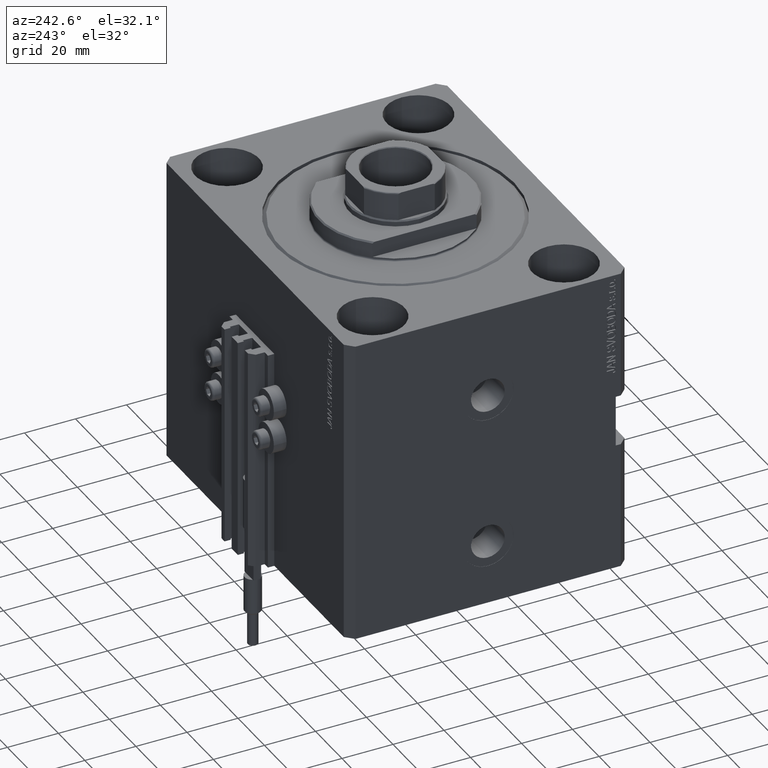
[diagram: clean part render]
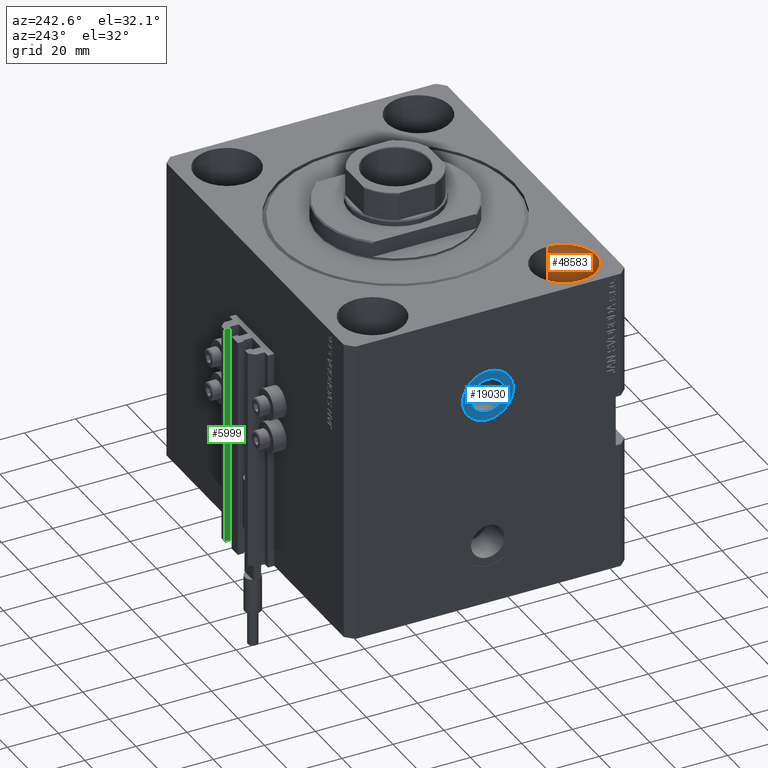
[diagram: same view with three faces highlighted in distinct colors, each labeled with its STEP entity id]
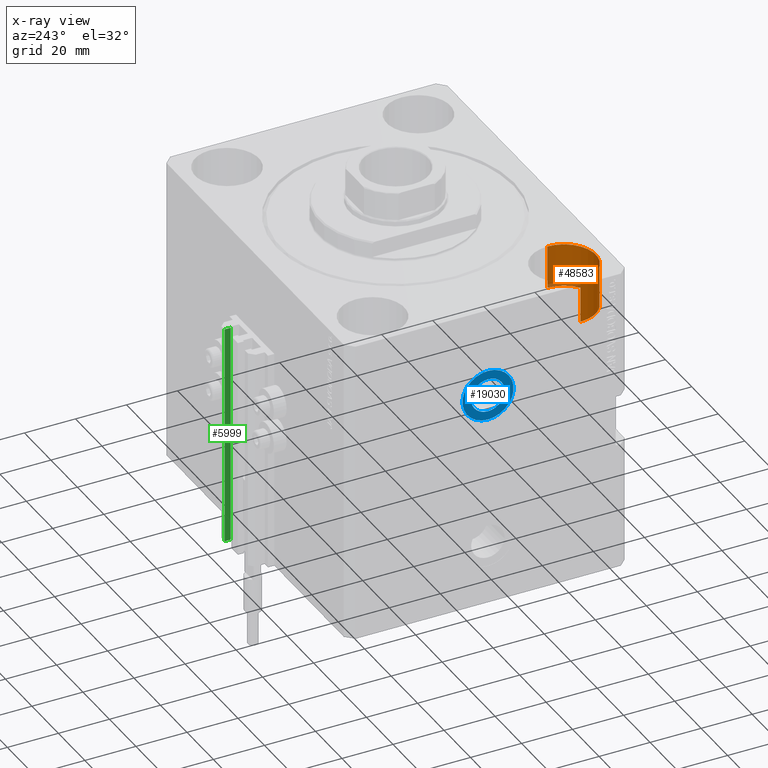
[diagram: x-ray of the same camera — body ghosted, the three highlighted faces saturated]
A machine part, auxiliary view with three faces highlighted in distinct colors.
The next image is the same camera in x-ray (body ghosted, the three faces saturated) — at least one of them is partly hidden behind the body in this view.
Their STEP definitions:

[orange] entity #48583 — the highlighted cylindrical surface (edge-blend (fillet) strip) has radius 12.5 mm, axis along (0, 0, 1).
#992 = CARTESIAN_POINT ( 'NONE',  ( -67.50000000000000000, -37.50000000000000711, -17.00000000000000000 ) ) ;
#1145 = VECTOR ( 'NONE', #42243, 1000.000000000000000 ) ;
#2487 = CIRCLE ( 'NONE', #39169, 12.49999999999999645 ) ;
#3030 = EDGE_CURVE ( 'NONE', #46671, #30058, #2487, .T. ) ;
#11386 = DIRECTION ( 'NONE',  ( 1.000000000000000000, 0.000000000000000000, 0.000000000000000000 ) ) ;
#11887 = LINE ( 'NONE', #46006, #1145 ) ;
#13022 = ORIENTED_EDGE ( 'NONE', *, *, #31569, .T. ) ;
#15261 = VECTOR ( 'NONE', #16764, 1000.000000000000000 ) ;
#16208 = EDGE_LOOP ( 'NONE', ( #37782, #13022, #16691, #42240 ) ) ;
#16691 = ORIENTED_EDGE ( 'NONE', *, *, #39879, .T. ) ;
#16764 = DIRECTION ( 'NONE',  ( -0.000000000000000000, -0.000000000000000000, 1.000000000000000000 ) ) ;
#17315 = CARTESIAN_POINT ( 'NONE',  ( -42.50000000000000711, -37.50000000000000711, 0.000000000000000000 ) ) ;
#18218 = VERTEX_POINT ( 'NONE', #17315 ) ;
#22767 = CYLINDRICAL_SURFACE ( 'NONE', #32534, 12.49999999999999645 ) ;
#24173 = DIRECTION ( 'NONE',  ( 1.000000000000000000, 0.000000000000000000, 0.000000000000000000 ) ) ;
#27032 = DIRECTION ( 'NONE',  ( -0.000000000000000000, -0.000000000000000000, 1.000000000000000000 ) ) ;
#27576 = LINE ( 'NONE', #992, #15261 ) ;
#30058 = VERTEX_POINT ( 'NONE', #49522 ) ;
#30783 = DIRECTION ( 'NONE',  ( 1.000000000000000000, 0.000000000000000000, 0.000000000000000000 ) ) ;
#31569 = EDGE_CURVE ( 'NONE', #46671, #48150, #27576, .T. ) ;
#32534 = AXIS2_PLACEMENT_3D ( 'NONE', #42315, #27032, #30783 ) ;
#34218 = DIRECTION ( 'NONE',  ( 0.000000000000000000, 0.000000000000000000, 1.000000000000000000 ) ) ;
#37477 = CARTESIAN_POINT ( 'NONE',  ( -55.00000000000000711, -37.50000000000000711, 0.000000000000000000 ) ) ;
#37782 = ORIENTED_EDGE ( 'NONE', *, *, #3030, .F. ) ;
#38734 = CARTESIAN_POINT ( 'NONE',  ( -55.00000000000000711, -37.50000000000000711, -17.00000000000000000 ) ) ;
#39169 = AXIS2_PLACEMENT_3D ( 'NONE', #38734, #46267, #24173 ) ;
#39879 = EDGE_CURVE ( 'NONE', #48150, #18218, #44363, .T. ) ;
#42240 = ORIENTED_EDGE ( 'NONE', *, *, #44094, .F. ) ;
#42243 = DIRECTION ( 'NONE',  ( -0.000000000000000000, -0.000000000000000000, 1.000000000000000000 ) ) ;
#42315 = CARTESIAN_POINT ( 'NONE',  ( -55.00000000000000711, -37.50000000000000711, -17.00000000000000000 ) ) ;
#43178 = CARTESIAN_POINT ( 'NONE',  ( -67.50000000000000000, -37.50000000000000711, -17.00000000000000000 ) ) ;
#44094 = EDGE_CURVE ( 'NONE', #30058, #18218, #11887, .T. ) ;
#44208 = CARTESIAN_POINT ( 'NONE',  ( -67.50000000000000000, -37.50000000000000711, 0.000000000000000000 ) ) ;
#44363 = CIRCLE ( 'NONE', #47566, 12.49999999999999645 ) ;
#45836 = FACE_OUTER_BOUND ( 'NONE', #16208, .T. ) ;
#46006 = CARTESIAN_POINT ( 'NONE',  ( -42.50000000000000711, -37.50000000000000711, -17.00000000000000000 ) ) ;
#46267 = DIRECTION ( 'NONE',  ( 0.000000000000000000, 0.000000000000000000, 1.000000000000000000 ) ) ;
#46671 = VERTEX_POINT ( 'NONE', #43178 ) ;
#47566 = AXIS2_PLACEMENT_3D ( 'NONE', #37477, #34218, #11386 ) ;
#48150 = VERTEX_POINT ( 'NONE', #44208 ) ;
#48583 = ADVANCED_FACE ( 'NONE', ( #45836 ), #22767, .F. ) ;
#49522 = CARTESIAN_POINT ( 'NONE',  ( -42.50000000000000711, -37.50000000000000711, -17.00000000000000000 ) ) ;

[blue] entity #19030 — the highlighted planar face has unit normal (-1, 0, 0).
#4333 = AXIS2_PLACEMENT_3D ( 'NONE', #8882, #28193, #9368 ) ;
#6856 = VERTEX_POINT ( 'NONE', #43356 ) ;
#7642 = DIRECTION ( 'NONE',  ( 0.000000000000000000, 0.000000000000000000, 1.000000000000000000 ) ) ;
#8882 = CARTESIAN_POINT ( 'NONE',  ( -69.90000000000000568, 1.174274352968916093E-14, -35.00000000000000000 ) ) ;
#9368 = DIRECTION ( 'NONE',  ( 0.000000000000000000, 0.000000000000000000, 1.000000000000000000 ) ) ;
#10396 = AXIS2_PLACEMENT_3D ( 'NONE', #26941, #11388, #7642 ) ;
#11388 = DIRECTION ( 'NONE',  ( -1.000000000000000000, 0.000000000000000000, 0.000000000000000000 ) ) ;
#13008 = DIRECTION ( 'NONE',  ( 0.000000000000000000, 0.000000000000000000, 1.000000000000000000 ) ) ;
#14377 = CARTESIAN_POINT ( 'NONE',  ( -69.90000000000000568, 1.254856112352811682E-14, -41.57999999999999829 ) ) ;
#14442 = EDGE_CURVE ( 'NONE', #45597, #20391, #46719, .T. ) ;
#15830 = CARTESIAN_POINT ( 'NONE',  ( -69.90000000000000568, 1.174274352968916093E-14, -25.00000000000000000 ) ) ;
#16584 = DIRECTION ( 'NONE',  ( -1.000000000000000000, 0.000000000000000000, 0.000000000000000000 ) ) ;
#17580 = CIRCLE ( 'NONE', #10396, 10.00000000000000178 ) ;
#19030 = ADVANCED_FACE ( 'NONE', ( #31390, #27633 ), #24111, .T. ) ;
#19310 = CARTESIAN_POINT ( 'NONE',  ( -69.90000000000000568, 1.174274352968916093E-14, -35.00000000000000000 ) ) ;
#20391 = VERTEX_POINT ( 'NONE', #14377 ) ;
#22984 = ORIENTED_EDGE ( 'NONE', *, *, #14442, .F. ) ;
#24111 = PLANE ( 'NONE',  #40378 ) ;
#25645 = ORIENTED_EDGE ( 'NONE', *, *, #46965, .T. ) ;
#26941 = CARTESIAN_POINT ( 'NONE',  ( -69.90000000000000568, 1.174274352968916093E-14, -35.00000000000000000 ) ) ;
#27633 = FACE_OUTER_BOUND ( 'NONE', #39254, .T. ) ;
#27865 = ORIENTED_EDGE ( 'NONE', *, *, #29204, .T. ) ;
#28193 = DIRECTION ( 'NONE',  ( -1.000000000000000000, 0.000000000000000000, 0.000000000000000000 ) ) ;
#28628 = EDGE_CURVE ( 'NONE', #20391, #45597, #31904, .T. ) ;
#29204 = EDGE_CURVE ( 'NONE', #6856, #42063, #17580, .T. ) ;
#30345 = ORIENTED_EDGE ( 'NONE', *, *, #28628, .F. ) ;
#31390 = FACE_BOUND ( 'NONE', #34556, .T. ) ;
#31904 = CIRCLE ( 'NONE', #40706, 6.579999999999999183 ) ;
#32277 = DIRECTION ( 'NONE',  ( -1.000000000000000000, 0.000000000000000000, 0.000000000000000000 ) ) ;
#34556 = EDGE_LOOP ( 'NONE', ( #22984, #30345 ) ) ;
#36533 = DIRECTION ( 'NONE',  ( 0.000000000000000000, 0.000000000000000000, 1.000000000000000000 ) ) ;
#38864 = DIRECTION ( 'NONE',  ( -1.000000000000000000, 0.000000000000000000, 0.000000000000000000 ) ) ;
#39254 = EDGE_LOOP ( 'NONE', ( #25645, #27865 ) ) ;
#39892 = CARTESIAN_POINT ( 'NONE',  ( -69.90000000000000568, 1.174274352968916093E-14, -35.00000000000000000 ) ) ;
#40378 = AXIS2_PLACEMENT_3D ( 'NONE', #39892, #16584, #45784 ) ;
#40706 = AXIS2_PLACEMENT_3D ( 'NONE', #47568, #32277, #36533 ) ;
#42063 = VERTEX_POINT ( 'NONE', #15830 ) ;
#43356 = CARTESIAN_POINT ( 'NONE',  ( -69.90000000000000568, 1.296739032883651399E-14, -45.00000000000000711 ) ) ;
#44352 = CARTESIAN_POINT ( 'NONE',  ( -69.90000000000000568, 1.174274352968916093E-14, -28.42000000000000526 ) ) ;
#45305 = AXIS2_PLACEMENT_3D ( 'NONE', #19310, #38864, #13008 ) ;
#45597 = VERTEX_POINT ( 'NONE', #44352 ) ;
#45784 = DIRECTION ( 'NONE',  ( 0.000000000000000000, 0.000000000000000000, 1.000000000000000000 ) ) ;
#46719 = CIRCLE ( 'NONE', #4333, 6.579999999999999183 ) ;
#46965 = EDGE_CURVE ( 'NONE', #42063, #6856, #47674, .T. ) ;
#47568 = CARTESIAN_POINT ( 'NONE',  ( -69.90000000000000568, 1.174274352968916093E-14, -35.00000000000000000 ) ) ;
#47674 = CIRCLE ( 'NONE', #45305, 10.00000000000000178 ) ;

[green] entity #5999 — the highlighted planar face has unit normal (-1, 0, 0).
#1023 = CARTESIAN_POINT ( 'NONE',  ( 7.649999999999998579, 63.00000000000002842, -120.0000000000000000 ) ) ;
#1180 = PLANE ( 'NONE',  #16043 ) ;
#2333 = EDGE_LOOP ( 'NONE', ( #24634, #9082, #23792, #20400 ) ) ;
#2485 = VECTOR ( 'NONE', #7241, 1000.000000000000000 ) ;
#3672 = VERTEX_POINT ( 'NONE', #36380 ) ;
#5899 = CARTESIAN_POINT ( 'NONE',  ( 7.649999999999998579, 60.60000000000002984, -33.00000000000000000 ) ) ;
#5999 = ADVANCED_FACE ( 'NONE', ( #12453 ), #1180, .T. ) ;
#6792 = CARTESIAN_POINT ( 'NONE',  ( 7.649999999999998579, 63.00000000000002842, -120.0000000000000000 ) ) ;
#7089 = EDGE_CURVE ( 'NONE', #40952, #27556, #18751, .T. ) ;
#7241 = DIRECTION ( 'NONE',  ( 0.000000000000000000, 0.000000000000000000, 1.000000000000000000 ) ) ;
#9082 = ORIENTED_EDGE ( 'NONE', *, *, #45180, .F. ) ;
#12453 = FACE_OUTER_BOUND ( 'NONE', #2333, .T. ) ;
#12843 = VERTEX_POINT ( 'NONE', #1023 ) ;
#16043 = AXIS2_PLACEMENT_3D ( 'NONE', #20465, #16210, #47543 ) ;
#16210 = DIRECTION ( 'NONE',  ( -1.000000000000000000, 0.000000000000000000, 0.000000000000000000 ) ) ;
#18654 = VECTOR ( 'NONE', #36595, 1000.000000000000000 ) ;
#18751 = LINE ( 'NONE', #46085, #2485 ) ;
#20400 = ORIENTED_EDGE ( 'NONE', *, *, #7089, .T. ) ;
#20465 = CARTESIAN_POINT ( 'NONE',  ( 7.649999999999998579, 63.00000000000002842, -120.0000000000000000 ) ) ;
#21291 = CARTESIAN_POINT ( 'NONE',  ( 7.649999999999998579, 63.00000000000002842, -33.00000000000000000 ) ) ;
#23211 = EDGE_CURVE ( 'NONE', #12843, #40952, #26087, .T. ) ;
#23792 = ORIENTED_EDGE ( 'NONE', *, *, #23211, .T. ) ;
#24409 = VECTOR ( 'NONE', #30965, 1000.000000000000000 ) ;
#24634 = ORIENTED_EDGE ( 'NONE', *, *, #38279, .F. ) ;
#26087 = LINE ( 'NONE', #6792, #36522 ) ;
#27556 = VERTEX_POINT ( 'NONE', #5899 ) ;
#28836 = DIRECTION ( 'NONE',  ( 0.000000000000000000, -1.000000000000000000, 0.000000000000000000 ) ) ;
#30965 = DIRECTION ( 'NONE',  ( 0.000000000000000000, 0.000000000000000000, 1.000000000000000000 ) ) ;
#33347 = LINE ( 'NONE', #21291, #18654 ) ;
#36380 = CARTESIAN_POINT ( 'NONE',  ( 7.649999999999998579, 63.00000000000002842, -33.00000000000000000 ) ) ;
#36522 = VECTOR ( 'NONE', #28836, 1000.000000000000000 ) ;
#36595 = DIRECTION ( 'NONE',  ( 0.000000000000000000, -1.000000000000000000, 0.000000000000000000 ) ) ;
#38279 = EDGE_CURVE ( 'NONE', #3672, #27556, #33347, .T. ) ;
#38490 = CARTESIAN_POINT ( 'NONE',  ( 7.649999999999998579, 63.00000000000002842, -120.0000000000000000 ) ) ;
#40952 = VERTEX_POINT ( 'NONE', #49453 ) ;
#42260 = LINE ( 'NONE', #38490, #24409 ) ;
#45180 = EDGE_CURVE ( 'NONE', #12843, #3672, #42260, .T. ) ;
#46085 = CARTESIAN_POINT ( 'NONE',  ( 7.649999999999998579, 60.60000000000002984, -120.0000000000000000 ) ) ;
#47543 = DIRECTION ( 'NONE',  ( 0.000000000000000000, 0.000000000000000000, 1.000000000000000000 ) ) ;
#49453 = CARTESIAN_POINT ( 'NONE',  ( 7.649999999999998579, 60.60000000000002984, -120.0000000000000000 ) ) ;